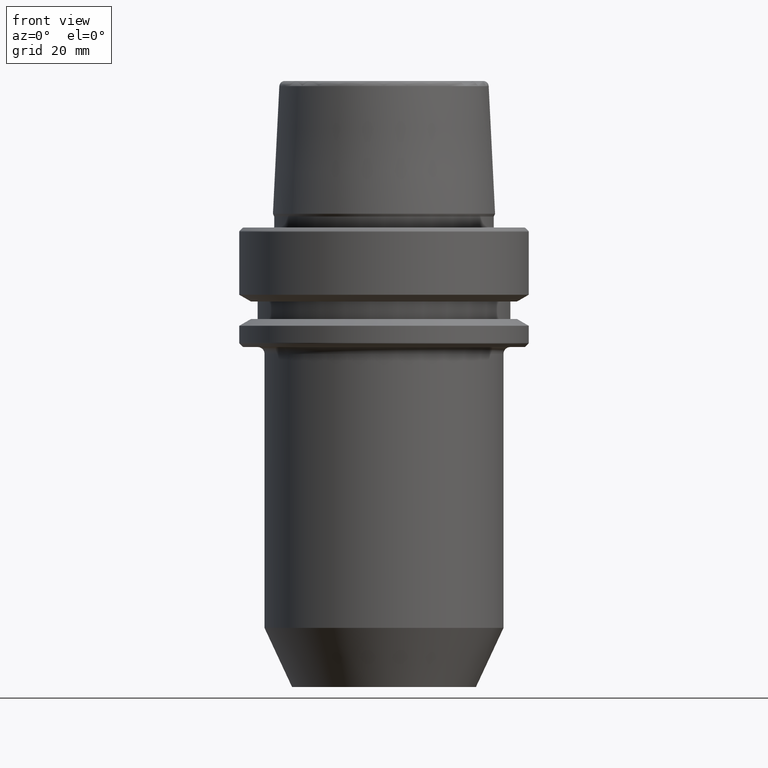
[diagram: clean part render]
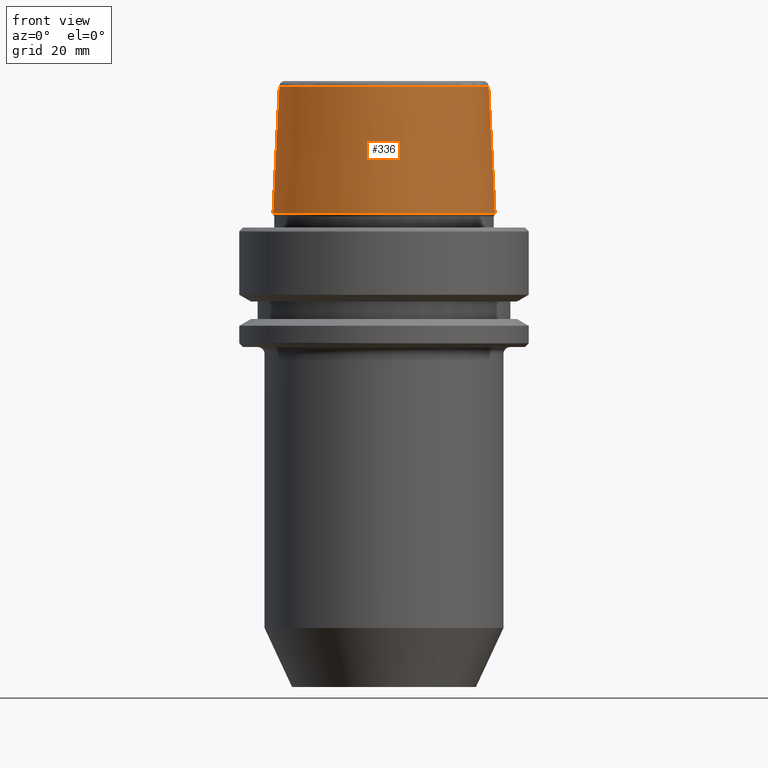
[diagram: same view with one face highlighted and labeled with its STEP entity id]
A machine part, front view. The second image highlights one B-rep face of the part: STEP entity #336.
In plain terms, the highlighted conical surface has half-angle 2.868 deg.
Its self-contained STEP definition (entity closure, byte-faithful):
#38 = DIRECTION ( 'NONE',  ( 1.000000000000000000, 0.0000000000000000000, 0.0000000000000000000 ) ) ;
#77 = VERTEX_POINT ( 'NONE', #677 ) ;
#89 = CARTESIAN_POINT ( 'NONE',  ( 24.17032625081241900, 2.960011267740467600E-015, 3.000000000000002700 ) ) ;
#117 = DIRECTION ( 'NONE',  ( 1.000000000000000000, 0.0000000000000000000, 0.0000000000000000000 ) ) ;
#127 = CARTESIAN_POINT ( 'NONE',  ( 0.0000000000000000000, 0.0000000000000000000, 3.000000000000002700 ) ) ;
#172 = CARTESIAN_POINT ( 'NONE',  ( -24.17032625081241900, 0.0000000000000000000, 3.000000000000002700 ) ) ;
#213 = CARTESIAN_POINT ( 'NONE',  ( 0.0000000000000000000, 0.0000000000000000000, 30.76004333261571900 ) ) ;
#217 = EDGE_CURVE ( 'NONE', #699, #766, #1249, .T. ) ;
#262 = CIRCLE ( 'NONE', #1113, 22.77957961851797100 ) ;
#300 = CARTESIAN_POINT ( 'NONE',  ( 0.0000000000000000000, 0.0000000000000000000, 3.000000000000002700 ) ) ;
#314 = ORIENTED_EDGE ( 'NONE', *, *, #217, .T. ) ;
#328 = VECTOR ( 'NONE', #1115, 1000.000000000000200 ) ;
#336 = ADVANCED_FACE ( 'NONE', ( #1237 ), #363, .T. ) ;
#363 = CONICAL_SURFACE ( 'NONE', #606, 24.17032625081241900, 0.05005701257456005000 ) ;
#376 = EDGE_CURVE ( 'NONE', #503, #77, #588, .T. ) ;
#482 = VECTOR ( 'NONE', #542, 1000.000000000000200 ) ;
#503 = VERTEX_POINT ( 'NONE', #1102 ) ;
#542 = DIRECTION ( 'NONE',  ( 0.05003611051310812000, 6.127656258166108900E-018, -0.9987474093306675200 ) ) ;
#588 = LINE ( 'NONE', #89, #482 ) ;
#606 = AXIS2_PLACEMENT_3D ( 'NONE', #300, #1257, #1258 ) ;
#677 = CARTESIAN_POINT ( 'NONE',  ( 24.17032625081241900, 0.0000000000000000000, 3.000000000000002700 ) ) ;
#699 = VERTEX_POINT ( 'NONE', #868 ) ;
#715 = DIRECTION ( 'NONE',  ( -0.0000000000000000000, -0.0000000000000000000, 1.000000000000000000 ) ) ;
#722 = AXIS2_PLACEMENT_3D ( 'NONE', #127, #715, #38 ) ;
#730 = ORIENTED_EDGE ( 'NONE', *, *, #1124, .T. ) ;
#766 = VERTEX_POINT ( 'NONE', #838 ) ;
#780 = ORIENTED_EDGE ( 'NONE', *, *, #1152, .F. ) ;
#811 = DIRECTION ( 'NONE',  ( -0.0000000000000000000, -0.0000000000000000000, 1.000000000000000000 ) ) ;
#838 = CARTESIAN_POINT ( 'NONE',  ( -24.17032625081241900, 2.960011267740467600E-015, 3.000000000000002700 ) ) ;
#868 = CARTESIAN_POINT ( 'NONE',  ( -22.77957961851797100, 0.0000000000000000000, 30.76004333261571900 ) ) ;
#1013 = CIRCLE ( 'NONE', #722, 24.17032625081241900 ) ;
#1018 = ORIENTED_EDGE ( 'NONE', *, *, #376, .F. ) ;
#1067 = EDGE_LOOP ( 'NONE', ( #1018, #780, #314, #730 ) ) ;
#1102 = CARTESIAN_POINT ( 'NONE',  ( 22.77957961851797100, 2.874852597157249900E-015, 30.76004333261571900 ) ) ;
#1113 = AXIS2_PLACEMENT_3D ( 'NONE', #213, #811, #117 ) ;
#1115 = DIRECTION ( 'NONE',  ( -0.05003611051310812000, 0.0000000000000000000, -0.9987474093306675200 ) ) ;
#1124 = EDGE_CURVE ( 'NONE', #766, #77, #1013, .T. ) ;
#1152 = EDGE_CURVE ( 'NONE', #699, #503, #262, .T. ) ;
#1237 = FACE_OUTER_BOUND ( 'NONE', #1067, .T. ) ;
#1249 = LINE ( 'NONE', #172, #328 ) ;
#1257 = DIRECTION ( 'NONE',  ( 0.0000000000000000000, 0.0000000000000000000, -1.000000000000000000 ) ) ;
#1258 = DIRECTION ( 'NONE',  ( -1.000000000000000000, 0.0000000000000000000, 0.0000000000000000000 ) ) ;